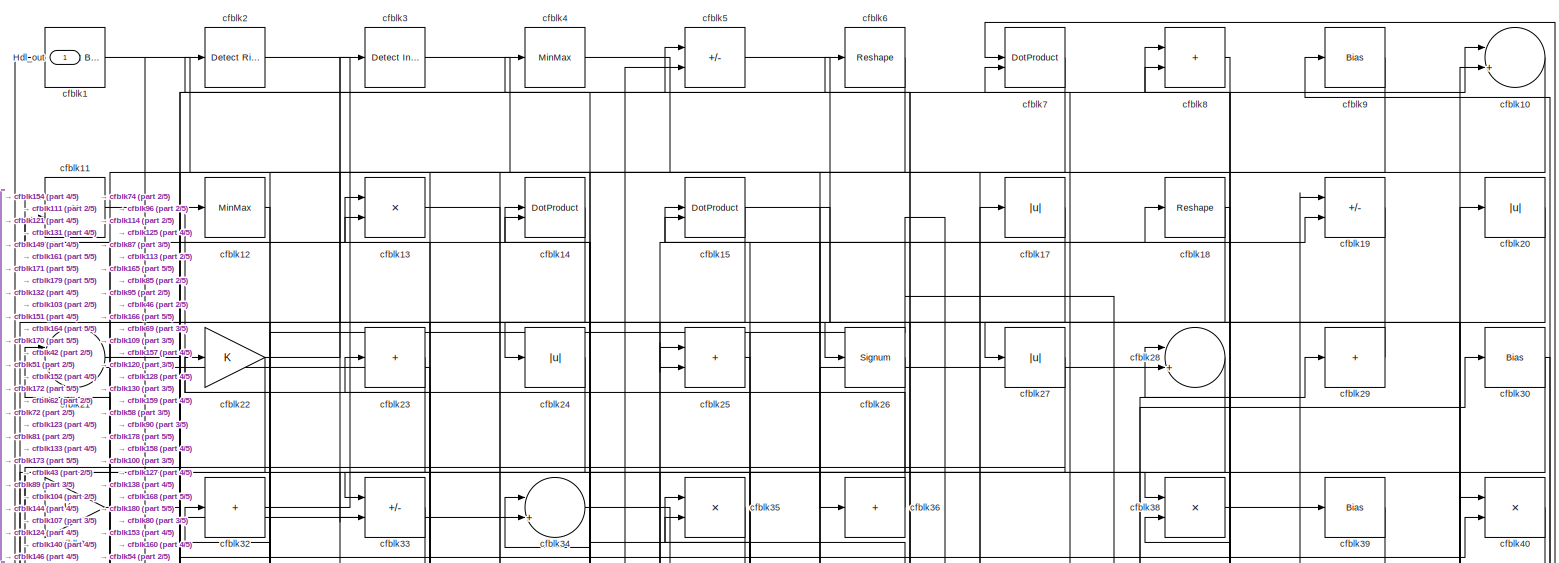
[diagram: root canvas - part 1/5, full width, top band]
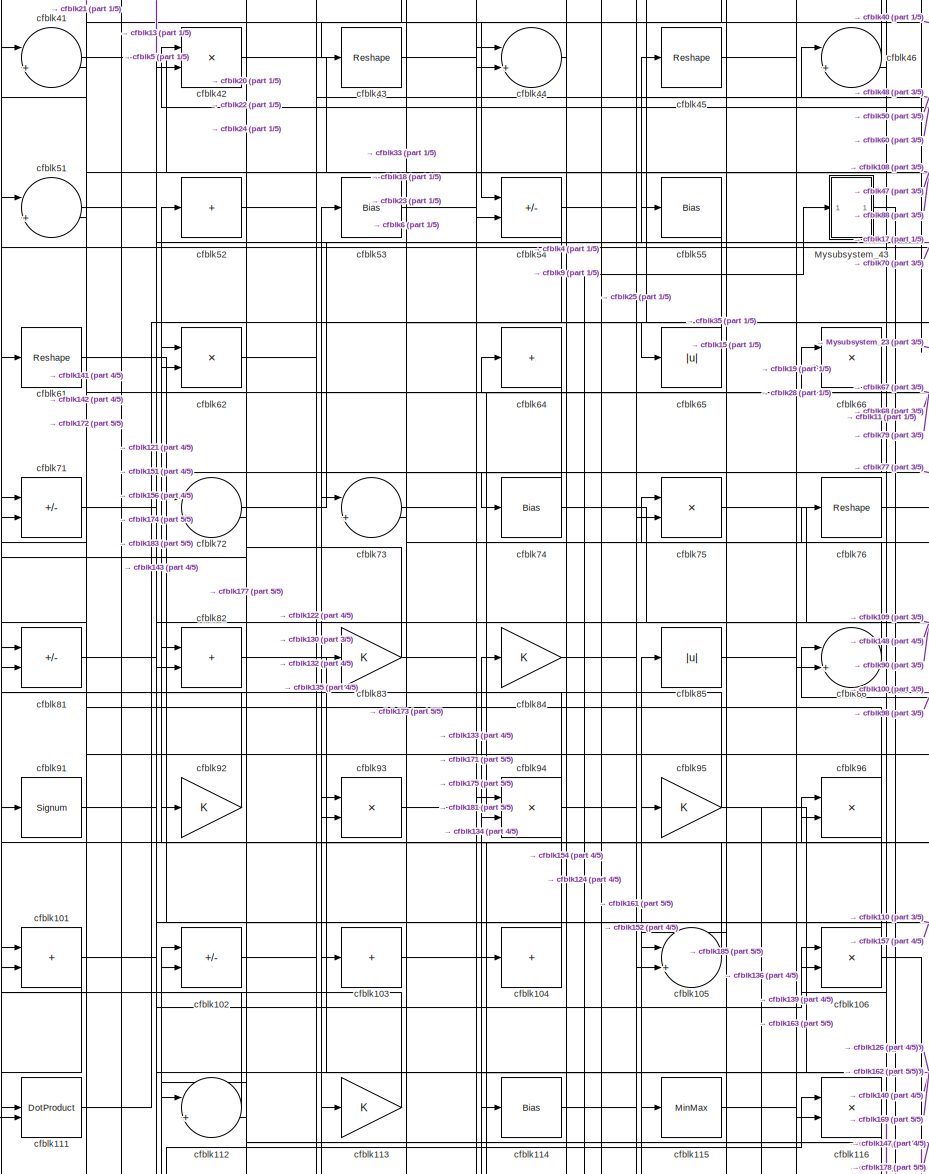
[diagram: root canvas - part 2/5, middle left region]
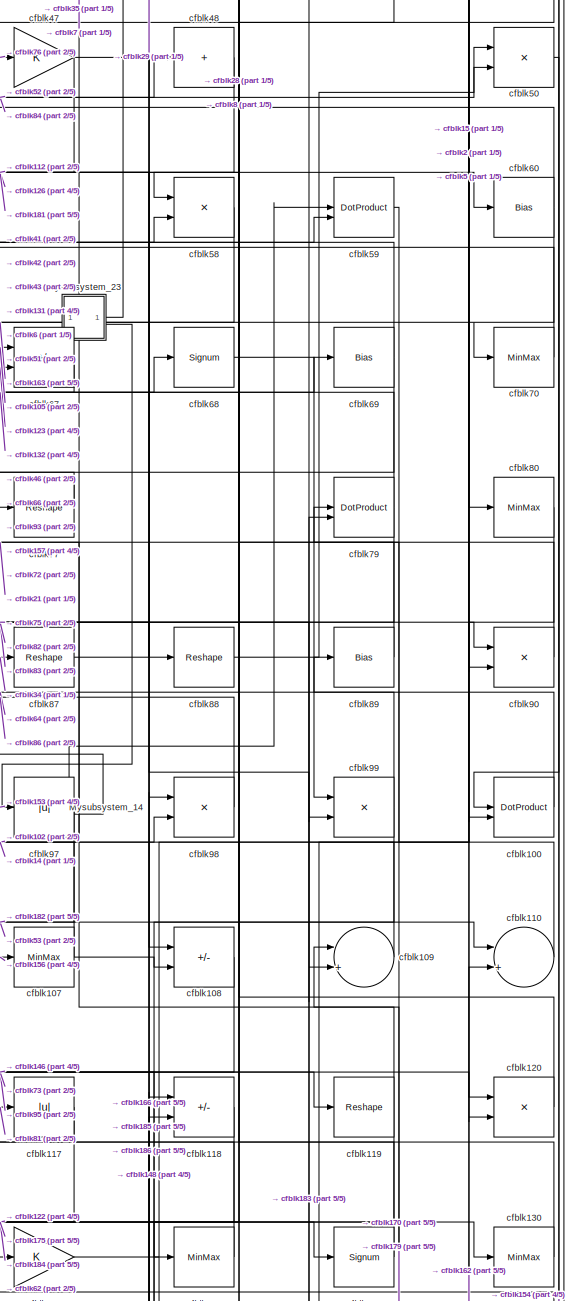
[diagram: root canvas - part 3/5, middle right region]
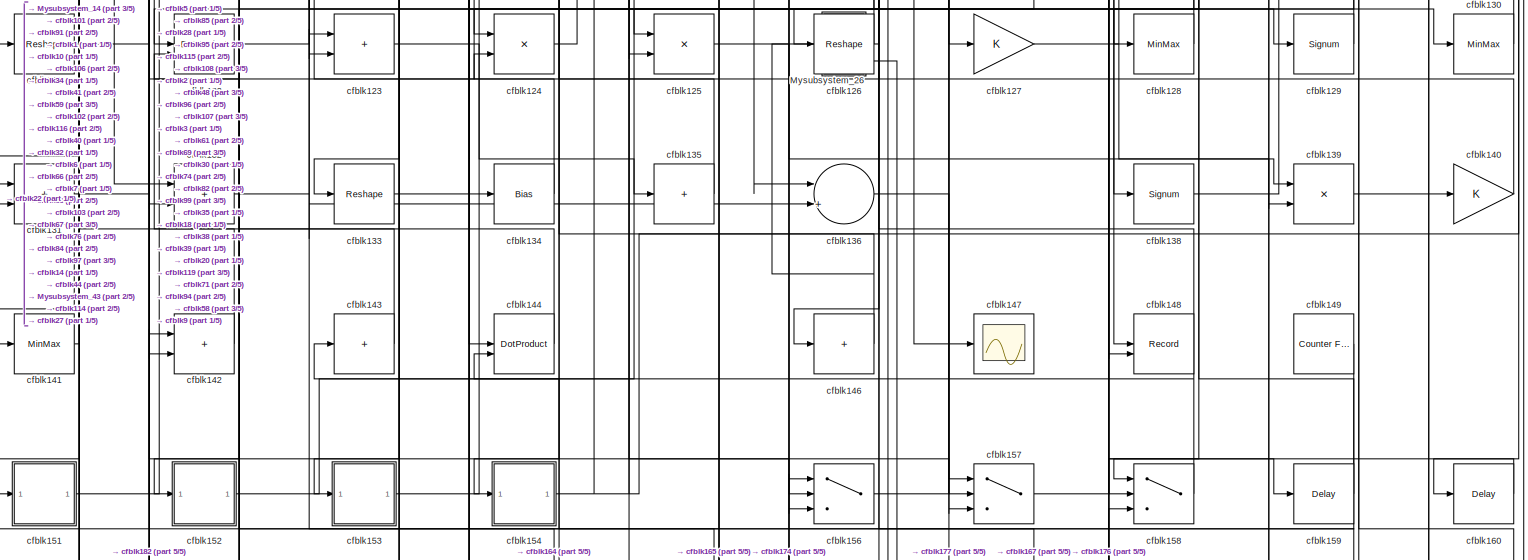
[diagram: root canvas - part 4/5, full width, bottom band]
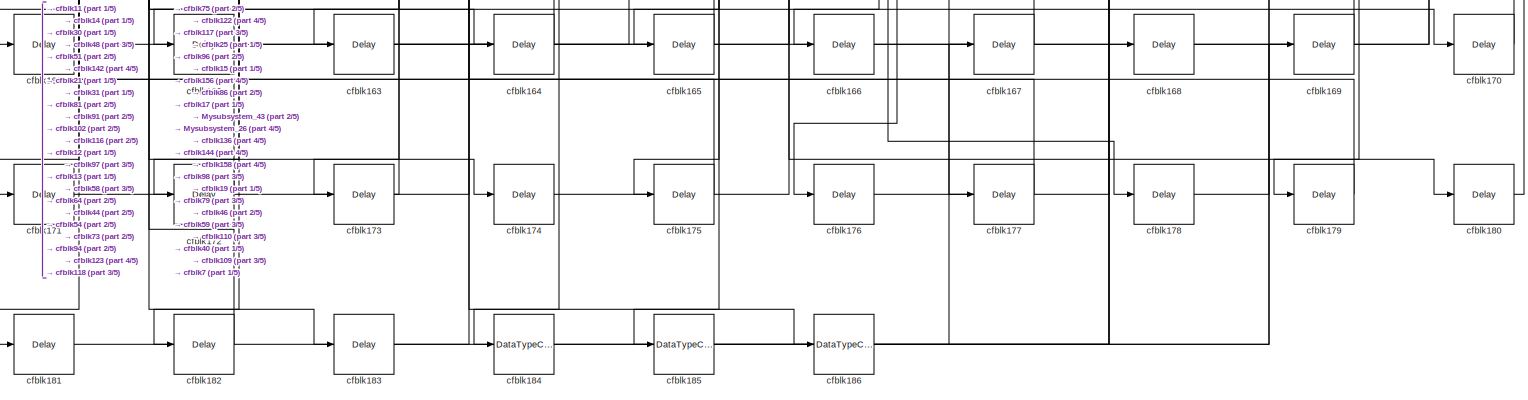
[diagram: root canvas - part 5/5, full width, bottom band]
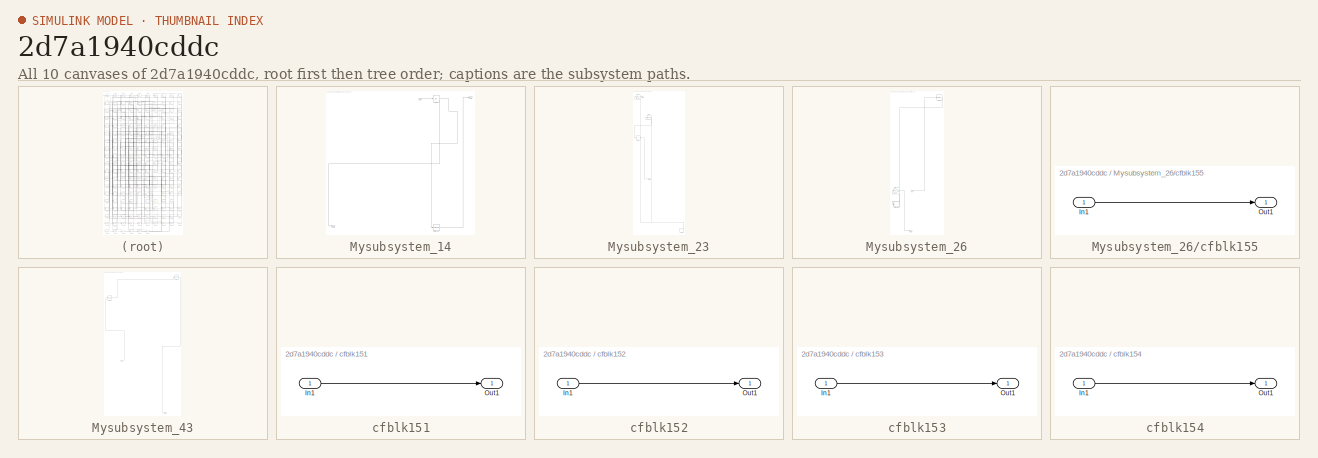
[diagram: thumbnail index - all 10 canvases of the model, root first then tree order]
MODEL slx_2d7a1940cddc
KIND model
CONFIG AbsTol = auto
CONFIG EnableMultiTasking = off
CONFIG FixedStep = auto
CONFIG MaxStep = auto
CONFIG MinStep = auto
CONFIG RelTol = 1e-3
CONFIG SampleTimeConstraint = Unconstrained
CONFIG SolverName = VariableStepAuto
CONFIG StartTime = 0.0
CONFIG StopTime = 10.0
BLOCK [Outport] Hdl_out
  OutDataTypeStr = uint8
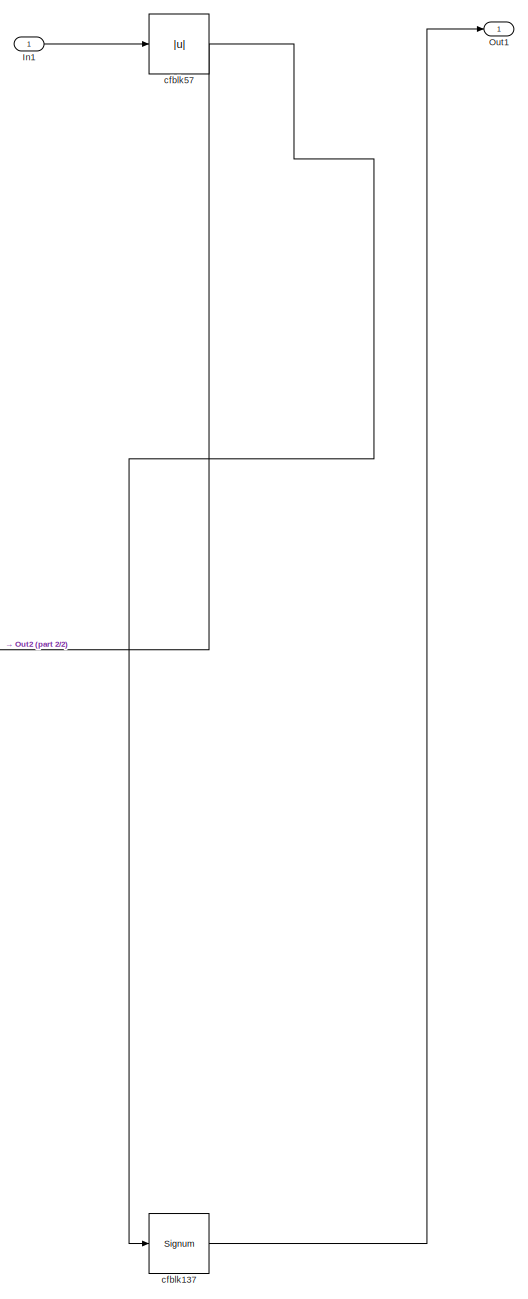
[diagram: Mysubsystem_14 - part 1/2, right side, full height]
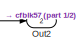
[diagram: Mysubsystem_14 - part 2/2, bottom left region]
BLOCK [SubSystem] Mysubsystem_14
  RTWFcnName = Mysubsystem_14
  RTWFcnNameOpts = User specified
  RTWFileNameOpts = Use function name
  RTWSystemCode = Reusable function
  TreatAsAtomicUnit = on
BLOCK [Inport] Mysubsystem_14/In1
BLOCK [Outport] Mysubsystem_14/Out1
BLOCK [Outport] Mysubsystem_14/Out2
  Port = 2
BLOCK [Signum] Mysubsystem_14/cfblk137
BLOCK [Abs] Mysubsystem_14/cfblk57
  SaturateOnIntegerOverflow = off
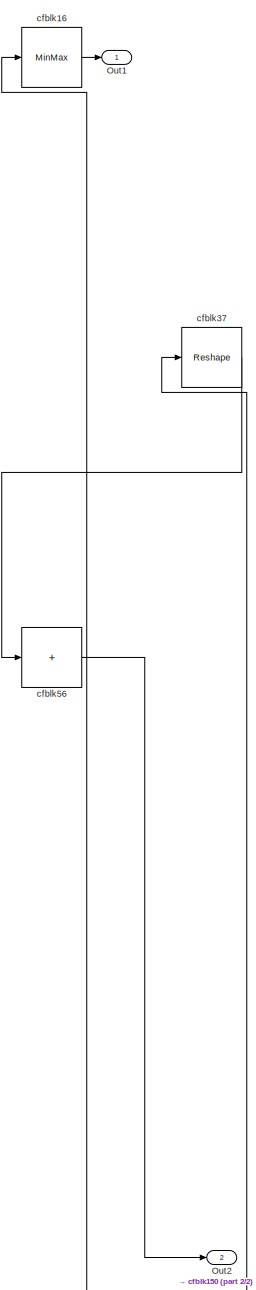
[diagram: Mysubsystem_23 - part 1/2, top left region]
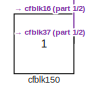
[diagram: Mysubsystem_23 - part 2/2, bottom right region]
BLOCK [SubSystem] Mysubsystem_23
  RTWFcnName = Mysubsystem_23
  RTWFcnNameOpts = User specified
  RTWFileNameOpts = Use function name
  RTWSystemCode = Reusable function
  TreatAsAtomicUnit = on
BLOCK [Outport] Mysubsystem_23/Out1
BLOCK [Outport] Mysubsystem_23/Out2
  Port = 2
BLOCK [Constant] Mysubsystem_23/cfblk150
  SampleTime = -1
BLOCK [MinMax] Mysubsystem_23/cfblk16
BLOCK [Reshape] Mysubsystem_23/cfblk37
BLOCK [Sum] Mysubsystem_23/cfblk56
  IconShape = rectangular
  Inputs = +
BLOCK [SubSystem] Mysubsystem_26
  RTWFcnName = Mysubsystem_26
  RTWFcnNameOpts = User specified
  RTWFileNameOpts = Use function name
  RTWSystemCode = Reusable function
  TreatAsAtomicUnit = on
BLOCK [Inport] Mysubsystem_26/In1
BLOCK [Outport] Mysubsystem_26/Out1
BLOCK [Gain] Mysubsystem_26/cfblk145
BLOCK [SubSystem] Mysubsystem_26/cfblk155
  LibrarySourceBlock = hdlsllib/Ports &\nSubsystems/Subsystem
BLOCK [Inport] Mysubsystem_26/cfblk155/In1
BLOCK [Outport] Mysubsystem_26/cfblk155/Out1
BLOCK [MinMax] Mysubsystem_26/cfblk78
BLOCK [SubSystem] Mysubsystem_43
  RTWFcnName = Mysubsystem_43
  RTWFcnNameOpts = User specified
  RTWFileNameOpts = Use function name
  RTWSystemCode = Reusable function
  TreatAsAtomicUnit = on
BLOCK [Inport] Mysubsystem_43/In1
BLOCK [Outport] Mysubsystem_43/Out1
BLOCK [Signum] Mysubsystem_43/cfblk49
BLOCK [Reshape] Mysubsystem_43/cfblk63
BLOCK [Reference] cfblk1  REF=simulink/Logic and Bit
Operations/Extract Bits
  LibrarySourceBlock = hdlsllib/Logic and Bit\nOperations/Extract Bits
  SourceBlock = simulink/Logic and Bit\nOperations/Extract Bits
  SourceType = Extract Bits
BLOCK [Sum] cfblk10
  Inputs = |++
  OutDataTypeStr = uint8
BLOCK [DotProduct] cfblk100
  OutDataTypeStr = uint8
BLOCK [Sum] cfblk101
  IconShape = rectangular
  OutDataTypeStr = uint8
BLOCK [Sum] cfblk102
  IconShape = rectangular
  Inputs = +-
  OutDataTypeStr = uint8
BLOCK [Sum] cfblk103
  IconShape = rectangular
  Inputs = +
  OutDataTypeStr = uint8
BLOCK [Sum] cfblk104
  IconShape = rectangular
  Inputs = +
  OutDataTypeStr = uint8
BLOCK [Sum] cfblk105
  Inputs = |++
  OutDataTypeStr = uint8
BLOCK [Product] cfblk106
  Inputs = */
  OutDataTypeStr = uint8
  RndMeth = Zero
  SaturateOnIntegerOverflow = on
BLOCK [MinMax] cfblk107
  OutDataTypeStr = uint8
BLOCK [Sum] cfblk108
  IconShape = rectangular
  Inputs = +-
  OutDataTypeStr = uint8
BLOCK [Sum] cfblk109
  Inputs = |++
  OutDataTypeStr = uint8
BLOCK [Product] cfblk11
  Inputs = */
  OutDataTypeStr = uint8
  RndMeth = Zero
  SaturateOnIntegerOverflow = on
BLOCK [Sum] cfblk110
  Inputs = |++
  OutDataTypeStr = uint8
BLOCK [DotProduct] cfblk111
  OutDataTypeStr = uint8
BLOCK [Sum] cfblk112
  Inputs = |++
  OutDataTypeStr = uint8
BLOCK [Gain] cfblk113
  OutDataTypeStr = uint8
BLOCK [Bias] cfblk114
  Bias = 0.0
  SaturateOnIntegerOverflow = off
BLOCK [MinMax] cfblk115
  OutDataTypeStr = uint8
BLOCK [Product] cfblk116
  Inputs = */
  OutDataTypeStr = uint8
  RndMeth = Zero
  SaturateOnIntegerOverflow = on
BLOCK [Abs] cfblk117
  OutDataTypeStr = uint8
  SaturateOnIntegerOverflow = off
BLOCK [Sum] cfblk118
  IconShape = rectangular
  Inputs = +-
  OutDataTypeStr = uint8
BLOCK [Reshape] cfblk119
BLOCK [MinMax] cfblk12
  OutDataTypeStr = uint8
BLOCK [Product] cfblk120
  Inputs = */
  OutDataTypeStr = uint8
  RndMeth = Zero
  SaturateOnIntegerOverflow = on
BLOCK [Reshape] cfblk121
BLOCK [DotProduct] cfblk122
  OutDataTypeStr = uint8
BLOCK [Sum] cfblk123
  IconShape = rectangular
  OutDataTypeStr = uint8
BLOCK [Product] cfblk124
  Inputs = */
  OutDataTypeStr = uint8
  RndMeth = Zero
  SaturateOnIntegerOverflow = on
BLOCK [Product] cfblk125
  Inputs = */
  OutDataTypeStr = uint8
  RndMeth = Zero
  SaturateOnIntegerOverflow = on
BLOCK [Reshape] cfblk126
BLOCK [Gain] cfblk127
  OutDataTypeStr = uint8
BLOCK [MinMax] cfblk128
  OutDataTypeStr = uint8
BLOCK [Signum] cfblk129
BLOCK [Product] cfblk13
  Inputs = */
  OutDataTypeStr = uint8
  RndMeth = Zero
  SaturateOnIntegerOverflow = on
BLOCK [MinMax] cfblk130
  OutDataTypeStr = uint8
BLOCK [Sum] cfblk131
  IconShape = rectangular
  OutDataTypeStr = uint8
BLOCK [Sum] cfblk132
  IconShape = rectangular
  OutDataTypeStr = uint8
BLOCK [Reshape] cfblk133
BLOCK [Bias] cfblk134
  Bias = 0.0
  SaturateOnIntegerOverflow = off
BLOCK [Sum] cfblk135
  IconShape = rectangular
  Inputs = +
  OutDataTypeStr = uint8
BLOCK [Sum] cfblk136
  Inputs = |++
  OutDataTypeStr = uint8
BLOCK [Signum] cfblk138
BLOCK [Product] cfblk139
  Inputs = */
  OutDataTypeStr = uint8
  RndMeth = Zero
  SaturateOnIntegerOverflow = on
BLOCK [DotProduct] cfblk14
  OutDataTypeStr = uint8
BLOCK [Gain] cfblk140
  OutDataTypeStr = uint8
BLOCK [MinMax] cfblk141
  OutDataTypeStr = uint8
BLOCK [Sum] cfblk142
  IconShape = rectangular
  OutDataTypeStr = uint8
BLOCK [Sum] cfblk143
  IconShape = rectangular
  Inputs = +
  OutDataTypeStr = uint8
BLOCK [DotProduct] cfblk144
  OutDataTypeStr = uint8
BLOCK [Sum] cfblk146
  IconShape = rectangular
  Inputs = +
  OutDataTypeStr = uint8
BLOCK [Scope] cfblk147
  Floating = off
  NumInputPorts = 1
  ScopeSpecificationString = Simulink.scopes.TimeScopeBlockCfg('CurrentConfiguration', extmgr.ConfigurationSet(extmgr.Configuration('Core','General UI',true),extmgr.Configuration('Core','Source UI',true),extmgr.Configuration('Sources','WiredSimulink',true,'DataLoggingVariableName','ScopeData2','DataLoggingSaveFormat','Array','DataLoggingLimitDataPoints',true,'DataLoggingDecimation','1'),extmgr.Configuration('Visuals','Time Do...<+868ch>
BLOCK [Record] cfblk148
  CompatibilityTag = XY
  FileSettingsInternal = {"entries":[{"content":{"excelSettings":{"content":{},"type":"Streamout.ExcelSettings"}},"type":"Streamout.FileSettingStorage","uuid":""}],"packageUris":["http:\/\/schema.mathworks.com\/mf0\/streamout_blocks\/R2020a"],"version":"1.0"}
  Layout = [1 1]
  SignalsInternal = {"entries":[{"content":{"signals":[{"content":{"blockPath":[],"dimensions":[1],"domain":"","lineColor":"#a2142f","plots":[1],"port":1,"signalID":43675,"signalName":"cfblk99"},"type":"RecordBlkView.Signal","uuid":""},{"content":{"blockPath":[],"dimensions":[1],"domain":"","lineColor":"#139fff","plots":[1],"port":2,"signalID":43678,"signalName":"cfblk74"},"type":"RecordBlkView.Signal","uuid":""}]},"...<+142ch>
  VisualizationBindings = {"xyplotplugin":{"info":[{"series":[{"bindingParametersList":[{"parameter":"X-Axis","signalID":43675,"signalName":"cfblk99"},{"parameter":"Y-Axis","signalID":43678,"signalName":"cfblk74"}],"seriesID":56360}],"subplotID":1}]}}
  st = -1
BLOCK [Reference] cfblk149  REF=hdlsllib/Sources/Counter
Free-Running
  SourceBlock = hdlsllib/Sources/Counter\nFree-Running
  SourceType = Counter Free-Running
BLOCK [DotProduct] cfblk15
  OutDataTypeStr = uint8
BLOCK [SubSystem] cfblk151
  LibrarySourceBlock = hdlsllib/Ports &\nSubsystems/Subsystem
BLOCK [Inport] cfblk151/In1
BLOCK [Outport] cfblk151/Out1
BLOCK [SubSystem] cfblk152
  LibrarySourceBlock = hdlsllib/Ports &\nSubsystems/Subsystem
BLOCK [Inport] cfblk152/In1
BLOCK [Outport] cfblk152/Out1
BLOCK [SubSystem] cfblk153
  LibrarySourceBlock = hdlsllib/Ports &\nSubsystems/Subsystem
BLOCK [Inport] cfblk153/In1
BLOCK [Outport] cfblk153/Out1
BLOCK [SubSystem] cfblk154
  LibrarySourceBlock = hdlsllib/Ports &\nSubsystems/Subsystem
BLOCK [Inport] cfblk154/In1
BLOCK [Outport] cfblk154/Out1
BLOCK [Switch] cfblk156
  InputSameDT = off
  OutDataTypeStr = uint8
  SaturateOnIntegerOverflow = off
BLOCK [Switch] cfblk157
  InputSameDT = off
  OutDataTypeStr = uint8
  SaturateOnIntegerOverflow = off
BLOCK [Switch] cfblk158
  InputSameDT = off
  OutDataTypeStr = uint8
  SaturateOnIntegerOverflow = off
BLOCK [Delay] cfblk159
  InputPortMap = u0
  SampleTime = 1
BLOCK [Delay] cfblk160
  InputPortMap = u0
  SampleTime = 1
BLOCK [Delay] cfblk161
  InputPortMap = u0
  SampleTime = 1
BLOCK [Delay] cfblk162
  InputPortMap = u0
  SampleTime = 1
BLOCK [Delay] cfblk163
  InputPortMap = u0
  SampleTime = 1
BLOCK [Delay] cfblk164
  InputPortMap = u0
  SampleTime = 1
BLOCK [Delay] cfblk165
  InputPortMap = u0
  SampleTime = 1
BLOCK [Delay] cfblk166
  InputPortMap = u0
  SampleTime = 1
BLOCK [Delay] cfblk167
  InputPortMap = u0
  SampleTime = 1
BLOCK [Delay] cfblk168
  InputPortMap = u0
  SampleTime = 1
BLOCK [Delay] cfblk169
  InputPortMap = u0
  SampleTime = 1
BLOCK [Abs] cfblk17
  OutDataTypeStr = uint8
  SaturateOnIntegerOverflow = off
BLOCK [Delay] cfblk170
  InputPortMap = u0
  SampleTime = 1
BLOCK [Delay] cfblk171
  InputPortMap = u0
  SampleTime = 1
BLOCK [Delay] cfblk172
  InputPortMap = u0
  SampleTime = 1
BLOCK [Delay] cfblk173
  InputPortMap = u0
  SampleTime = 1
BLOCK [Delay] cfblk174
  InputPortMap = u0
  SampleTime = 1
BLOCK [Delay] cfblk175
  InputPortMap = u0
  SampleTime = 1
BLOCK [Delay] cfblk176
  InputPortMap = u0
  SampleTime = 1
BLOCK [Delay] cfblk177
  InputPortMap = u0
  SampleTime = 1
BLOCK [Delay] cfblk178
  InputPortMap = u0
  SampleTime = 1
BLOCK [Delay] cfblk179
  InputPortMap = u0
  SampleTime = 1
BLOCK [Reshape] cfblk18
BLOCK [Delay] cfblk180
  InputPortMap = u0
  SampleTime = 1
BLOCK [Delay] cfblk181
  InputPortMap = u0
  SampleTime = 1
BLOCK [Delay] cfblk182
  InputPortMap = u0
  SampleTime = 1
BLOCK [Delay] cfblk183
  InputPortMap = u0
  SampleTime = 1
BLOCK [DataTypeConversion] cfblk184
  OutDataTypeStr = uint8
  RndMeth = Floor
  SaturateOnIntegerOverflow = off
BLOCK [DataTypeConversion] cfblk185
  OutDataTypeStr = uint8
  RndMeth = Floor
  SaturateOnIntegerOverflow = off
BLOCK [DataTypeConversion] cfblk186
  OutDataTypeStr = uint8
  RndMeth = Floor
  SaturateOnIntegerOverflow = off
BLOCK [Sum] cfblk19
  IconShape = rectangular
  Inputs = +-
  OutDataTypeStr = uint8
BLOCK [Reference] cfblk2  REF=hdlsllib/Logic and Bit
Operations/Detect Rise
Nonnegative
  SourceBlock = hdlsllib/Logic and Bit\nOperations/Detect Rise\nNonnegative
  SourceType = Detect Rise Nonnegative
BLOCK [Abs] cfblk20
  OutDataTypeStr = uint8
  SaturateOnIntegerOverflow = off
BLOCK [Sum] cfblk21
  Inputs = |++
  OutDataTypeStr = uint8
BLOCK [Gain] cfblk22
  OutDataTypeStr = uint8
BLOCK [Sum] cfblk23
  IconShape = rectangular
  Inputs = +
  OutDataTypeStr = uint8
BLOCK [Abs] cfblk24
  OutDataTypeStr = uint8
  SaturateOnIntegerOverflow = off
BLOCK [Sum] cfblk25
  IconShape = rectangular
  OutDataTypeStr = uint8
BLOCK [Signum] cfblk26
BLOCK [Abs] cfblk27
  OutDataTypeStr = uint8
  SaturateOnIntegerOverflow = off
BLOCK [Sum] cfblk28
  Inputs = |++
  OutDataTypeStr = uint8
BLOCK [Sum] cfblk29
  IconShape = rectangular
  Inputs = +
  OutDataTypeStr = uint8
BLOCK [Reference] cfblk3  REF=simulink/Logic and Bit
Operations/Detect
Increase
  LibrarySourceBlock = hdlsllib/Logic and Bit\nOperations/Detect\nIncrease
  SourceBlock = simulink/Logic and Bit\nOperations/Detect\nIncrease
  SourceType = Detect Increase
BLOCK [Bias] cfblk30
  Bias = 0.0
  SaturateOnIntegerOverflow = off
BLOCK [Gain] cfblk31
  OutDataTypeStr = uint8
BLOCK [Sum] cfblk32
  IconShape = rectangular
  Inputs = +
  OutDataTypeStr = uint8
BLOCK [Sum] cfblk33
  IconShape = rectangular
  Inputs = +-
  OutDataTypeStr = uint8
BLOCK [Sum] cfblk34
  Inputs = |++
  OutDataTypeStr = uint8
BLOCK [Product] cfblk35
  Inputs = */
  OutDataTypeStr = uint8
  RndMeth = Zero
  SaturateOnIntegerOverflow = on
BLOCK [Sum] cfblk36
  IconShape = rectangular
  Inputs = +
  OutDataTypeStr = uint8
BLOCK [Product] cfblk38
  Inputs = */
  OutDataTypeStr = uint8
  RndMeth = Zero
  SaturateOnIntegerOverflow = on
BLOCK [Bias] cfblk39
  Bias = 0.0
  SaturateOnIntegerOverflow = off
BLOCK [MinMax] cfblk4
  OutDataTypeStr = uint8
BLOCK [Product] cfblk40
  Inputs = */
  OutDataTypeStr = uint8
  RndMeth = Zero
  SaturateOnIntegerOverflow = on
BLOCK [Sum] cfblk41
  Inputs = |++
  OutDataTypeStr = uint8
BLOCK [Product] cfblk42
  Inputs = */
  OutDataTypeStr = uint8
  RndMeth = Zero
  SaturateOnIntegerOverflow = on
BLOCK [Reshape] cfblk43
BLOCK [Sum] cfblk44
  Inputs = |++
  OutDataTypeStr = uint8
BLOCK [Reshape] cfblk45
BLOCK [Sum] cfblk46
  Inputs = |++
  OutDataTypeStr = uint8
BLOCK [Gain] cfblk47
  OutDataTypeStr = uint8
BLOCK [Sum] cfblk48
  IconShape = rectangular
  Inputs = +
  OutDataTypeStr = uint8
BLOCK [Sum] cfblk5
  IconShape = rectangular
  Inputs = +-
  OutDataTypeStr = uint8
BLOCK [Product] cfblk50
  Inputs = */
  OutDataTypeStr = uint8
  RndMeth = Zero
  SaturateOnIntegerOverflow = on
BLOCK [Sum] cfblk51
  Inputs = |++
  OutDataTypeStr = uint8
BLOCK [Sum] cfblk52
  IconShape = rectangular
  Inputs = +
  OutDataTypeStr = uint8
BLOCK [Bias] cfblk53
  Bias = 0.0
  SaturateOnIntegerOverflow = off
BLOCK [Sum] cfblk54
  IconShape = rectangular
  Inputs = +-
  OutDataTypeStr = uint8
BLOCK [Bias] cfblk55
  Bias = 0.0
  SaturateOnIntegerOverflow = off
BLOCK [Product] cfblk58
  Inputs = */
  OutDataTypeStr = uint8
  RndMeth = Zero
  SaturateOnIntegerOverflow = on
BLOCK [DotProduct] cfblk59
  OutDataTypeStr = uint8
BLOCK [Reshape] cfblk6
BLOCK [Bias] cfblk60
  Bias = 0.0
  SaturateOnIntegerOverflow = off
BLOCK [Reshape] cfblk61
BLOCK [Product] cfblk62
  Inputs = */
  OutDataTypeStr = uint8
  RndMeth = Zero
  SaturateOnIntegerOverflow = on
BLOCK [Sum] cfblk64
  IconShape = rectangular
  Inputs = +
  OutDataTypeStr = uint8
BLOCK [Abs] cfblk65
  OutDataTypeStr = uint8
  SaturateOnIntegerOverflow = off
BLOCK [Product] cfblk66
  Inputs = */
  OutDataTypeStr = uint8
  RndMeth = Zero
  SaturateOnIntegerOverflow = on
BLOCK [Sum] cfblk67
  IconShape = rectangular
  Inputs = +-
  OutDataTypeStr = uint8
BLOCK [Signum] cfblk68
BLOCK [Bias] cfblk69
  Bias = 0.0
  SaturateOnIntegerOverflow = off
BLOCK [DotProduct] cfblk7
  OutDataTypeStr = uint8
BLOCK [MinMax] cfblk70
  OutDataTypeStr = uint8
BLOCK [Sum] cfblk71
  IconShape = rectangular
  Inputs = +-
  OutDataTypeStr = uint8
BLOCK [Sum] cfblk72
  Inputs = |++
  OutDataTypeStr = uint8
BLOCK [Sum] cfblk73
  Inputs = |++
  OutDataTypeStr = uint8
BLOCK [Bias] cfblk74
  Bias = 0.0
  SaturateOnIntegerOverflow = off
BLOCK [Product] cfblk75
  Inputs = */
  OutDataTypeStr = uint8
  RndMeth = Zero
  SaturateOnIntegerOverflow = on
BLOCK [Reshape] cfblk76
BLOCK [Reshape] cfblk77
BLOCK [DotProduct] cfblk79
  OutDataTypeStr = uint8
BLOCK [Sum] cfblk8
  IconShape = rectangular
  OutDataTypeStr = uint8
BLOCK [MinMax] cfblk80
  OutDataTypeStr = uint8
BLOCK [Sum] cfblk81
  IconShape = rectangular
  Inputs = +-
  OutDataTypeStr = uint8
BLOCK [Sum] cfblk82
  IconShape = rectangular
  OutDataTypeStr = uint8
BLOCK [Gain] cfblk83
  OutDataTypeStr = uint8
BLOCK [Gain] cfblk84
  OutDataTypeStr = uint8
BLOCK [Abs] cfblk85
  OutDataTypeStr = uint8
  SaturateOnIntegerOverflow = off
BLOCK [Sum] cfblk86
  Inputs = |++
  OutDataTypeStr = uint8
BLOCK [Reshape] cfblk87
BLOCK [Reshape] cfblk88
BLOCK [Bias] cfblk89
  Bias = 0.0
  SaturateOnIntegerOverflow = off
BLOCK [Bias] cfblk9
  Bias = 0.0
  SaturateOnIntegerOverflow = off
BLOCK [Product] cfblk90
  Inputs = */
  OutDataTypeStr = uint8
  RndMeth = Zero
  SaturateOnIntegerOverflow = on
BLOCK [Signum] cfblk91
BLOCK [Gain] cfblk92
  OutDataTypeStr = uint8
BLOCK [Product] cfblk93
  Inputs = */
  OutDataTypeStr = uint8
  RndMeth = Zero
  SaturateOnIntegerOverflow = on
BLOCK [Product] cfblk94
  Inputs = */
  OutDataTypeStr = uint8
  RndMeth = Zero
  SaturateOnIntegerOverflow = on
BLOCK [Gain] cfblk95
  OutDataTypeStr = uint8
BLOCK [Product] cfblk96
  Inputs = */
  OutDataTypeStr = uint8
  RndMeth = Zero
  SaturateOnIntegerOverflow = on
BLOCK [Abs] cfblk97
  OutDataTypeStr = uint8
  SaturateOnIntegerOverflow = off
BLOCK [Product] cfblk98
  Inputs = */
  OutDataTypeStr = uint8
  RndMeth = Zero
  SaturateOnIntegerOverflow = on
BLOCK [Product] cfblk99
  Inputs = */
  OutDataTypeStr = uint8
  RndMeth = Zero
  SaturateOnIntegerOverflow = on
LINE Mysubsystem_14/In1:1 -> Mysubsystem_14/cfblk57:1
LINE Mysubsystem_14/cfblk137:1 -> Mysubsystem_14/Out1:1
NET Mysubsystem_14/cfblk57:1 -> Mysubsystem_14/Out2:1, Mysubsystem_14/cfblk137:1
LINE Mysubsystem_14:1 -> cfblk59:1
LINE Mysubsystem_14:2 -> cfblk131:1
NET Mysubsystem_23/cfblk150:1 -> Mysubsystem_23/cfblk16:1, Mysubsystem_23/cfblk37:1
LINE Mysubsystem_23/cfblk16:1 -> Mysubsystem_23/Out1:1
LINE Mysubsystem_23/cfblk37:1 -> Mysubsystem_23/cfblk56:1
LINE Mysubsystem_23/cfblk56:1 -> Mysubsystem_23/Out2:1
NET Mysubsystem_23:1 -> cfblk105:1, cfblk112:1, cfblk67:1
LINE Mysubsystem_23:2 -> Mysubsystem_14:1
LINE Mysubsystem_26/In1:1 -> Mysubsystem_26/cfblk78:1
LINE Mysubsystem_26/cfblk145:1 -> Mysubsystem_26/Out1:1
LINE Mysubsystem_26/cfblk155/In1:1 -> Mysubsystem_26/cfblk155/Out1:1
LINE Mysubsystem_26/cfblk155:1 -> Mysubsystem_26/cfblk145:1
LINE Mysubsystem_26/cfblk78:1 -> Mysubsystem_26/cfblk155:1
LINE Mysubsystem_26:1 -> cfblk176:1
LINE Mysubsystem_43/In1:1 -> Mysubsystem_43/cfblk63:1
LINE Mysubsystem_43/cfblk49:1 -> Mysubsystem_43/Out1:1
LINE Mysubsystem_43/cfblk63:1 -> Mysubsystem_43/cfblk49:1
LINE Mysubsystem_43:1 -> cfblk178:1
LINE cfblk100:1 -> cfblk64:1
NET cfblk101:1 -> cfblk111:1, cfblk93:2, cfblk95:1
LINE cfblk102:1 -> cfblk98:2
LINE cfblk103:1 -> cfblk129:1
LINE cfblk104:1 -> cfblk22:1
LINE cfblk105:1 -> cfblk52:1
NET cfblk106:1 -> cfblk147:1, cfblk81:2
NET cfblk107:1 -> cfblk108:2, cfblk14:2
LINE cfblk108:1 -> cfblk146:1
NET cfblk109:1 -> cfblk35:2, cfblk7:2
LINE cfblk10:1 -> cfblk31:1
LINE cfblk110:1 -> cfblk79:1
LINE cfblk111:1 -> cfblk65:1
LINE cfblk112:1 -> cfblk101:1
LINE cfblk113:1 -> cfblk92:1
NET cfblk114:1 -> cfblk157:3, cfblk25:1
LINE cfblk115:1 -> cfblk139:1
LINE cfblk116:1 -> cfblk162:1
LINE cfblk117:1 -> cfblk175:1
LINE cfblk118:1 -> cfblk184:1
NET cfblk119:1 -> cfblk122:1, cfblk77:1
LINE cfblk11:1 -> cfblk103:1
LINE cfblk120:1 -> cfblk28:1
NET cfblk121:1 -> cfblk106:1, cfblk10:1, cfblk34:2
LINE cfblk122:1 -> cfblk66:1
NET cfblk123:1 -> cfblk135:1, cfblk67:2
LINE cfblk124:1 -> Mysubsystem_43:1
LINE cfblk125:1 -> cfblk156:2
NET cfblk126:1 -> cfblk106:2, cfblk82:1
NET cfblk127:1 -> cfblk10:2, cfblk139:2
LINE cfblk128:1 -> cfblk35:1
NET cfblk129:1 -> cfblk71:2, cfblk94:2
LINE cfblk12:1 -> cfblk172:1
LINE cfblk130:1 -> cfblk8:2
NET cfblk131:1 -> cfblk141:1, cfblk59:2
NET cfblk132:1 -> cfblk136:2, cfblk69:1, cfblk96:2
NET cfblk133:1 -> cfblk134:1, cfblk76:1
LINE cfblk134:1 -> cfblk84:1
LINE cfblk135:1 -> cfblk53:1
LINE cfblk136:1 -> cfblk177:1
LINE cfblk138:1 -> cfblk20:1
LINE cfblk139:1 -> cfblk140:1
LINE cfblk13:1 -> cfblk104:1
NET cfblk140:1 -> cfblk14:1, cfblk96:1
LINE cfblk141:1 -> cfblk101:2
LINE cfblk142:1 -> cfblk91:1
LINE cfblk143:1 -> cfblk102:1
LINE cfblk144:1 -> cfblk32:1
NET cfblk146:1 -> Mysubsystem_26:1, cfblk34:1
LINE cfblk149:1 -> cfblk1:1
LINE cfblk14:1 -> cfblk171:1
LINE cfblk151/In1:1 -> cfblk151/Out1:1
NET cfblk151:1 -> cfblk116:1, cfblk124:2, cfblk40:2
LINE cfblk152/In1:1 -> cfblk152/Out1:1
LINE cfblk152:1 -> cfblk85:1
LINE cfblk153/In1:1 -> cfblk153/Out1:1
LINE cfblk153:1 -> cfblk97:1
LINE cfblk154/In1:1 -> cfblk154/Out1:1
NET cfblk154:1 -> cfblk58:2, cfblk5:2, cfblk9:1
LINE cfblk156:1 -> cfblk107:1
NET cfblk157:1 -> cfblk159:1, cfblk30:1
NET cfblk158:1 -> cfblk143:1, cfblk2:1
LINE cfblk159:1 -> cfblk38:2
NET cfblk15:1 -> cfblk120:1, cfblk180:1, cfblk42:2
LINE cfblk160:1 -> cfblk158:2
LINE cfblk161:1 -> cfblk75:2
LINE cfblk162:1 -> cfblk110:2
LINE cfblk163:1 -> cfblk86:2
LINE cfblk164:1 -> cfblk123:1
LINE cfblk165:1 -> cfblk122:2
LINE cfblk166:1 -> cfblk98:1
LINE cfblk167:1 -> cfblk144:2
LINE cfblk168:1 -> cfblk40:1
LINE cfblk169:1 -> cfblk46:2
LINE cfblk170:1 -> cfblk109:1
LINE cfblk171:1 -> cfblk44:1
LINE cfblk172:1 -> cfblk51:2
LINE cfblk173:1 -> cfblk13:2
LINE cfblk174:1 -> cfblk156:1
LINE cfblk175:1 -> cfblk94:1
LINE cfblk176:1 -> cfblk158:3
LINE cfblk177:1 -> cfblk102:2
LINE cfblk178:1 -> cfblk19:1
LINE cfblk179:1 -> cfblk11:2
LINE cfblk17:1 -> cfblk166:1
LINE cfblk180:1 -> cfblk7:1
LINE cfblk181:1 -> cfblk54:2
LINE cfblk182:1 -> cfblk142:1
LINE cfblk183:1 -> cfblk79:2
NET cfblk184:1 -> cfblk167:1, cfblk168:1, cfblk169:1
LINE cfblk185:1 -> cfblk118:1
LINE cfblk186:1 -> cfblk118:2
NET cfblk18:1 -> cfblk111:2, cfblk128:1, cfblk133:1, cfblk15:2
LINE cfblk19:1 -> cfblk27:1
NET cfblk1:1 -> cfblk132:1, cfblk144:1
LINE cfblk20:1 -> cfblk62:1
LINE cfblk21:1 -> cfblk164:1
NET cfblk22:1 -> cfblk131:2, cfblk3:1
LINE cfblk23:1 -> cfblk33:1
LINE cfblk24:1 -> cfblk72:2
LINE cfblk25:1 -> cfblk165:1
LINE cfblk26:1 -> cfblk33:2
NET cfblk27:1 -> cfblk121:1, cfblk124:1, cfblk125:2
LINE cfblk28:1 -> cfblk125:1
NET cfblk29:1 -> cfblk24:1, cfblk26:1
NET cfblk2:1 -> cfblk25:2, cfblk80:1
NET cfblk30:1 -> cfblk160:1, cfblk161:1
LINE cfblk31:1 -> cfblk170:1
LINE cfblk32:1 -> cfblk38:1
LINE cfblk33:1 -> cfblk81:1
LINE cfblk34:1 -> cfblk87:1
LINE cfblk35:1 -> cfblk113:1
LINE cfblk36:1 -> cfblk12:1
LINE cfblk38:1 -> cfblk39:1
LINE cfblk39:1 -> cfblk158:1
LINE cfblk3:1 -> cfblk127:1
NET cfblk40:1 -> cfblk153:1, cfblk54:1
NET cfblk41:1 -> cfblk156:3, cfblk88:1
LINE cfblk42:1 -> cfblk108:1
LINE cfblk43:1 -> cfblk60:1
LINE cfblk44:1 -> cfblk154:1
LINE cfblk45:1 -> cfblk116:2
LINE cfblk46:1 -> cfblk11:1
NET cfblk47:1 -> cfblk112:2, cfblk99:2
NET cfblk48:1 -> cfblk126:1, cfblk181:1
LINE cfblk4:1 -> cfblk36:1
LINE cfblk50:1 -> cfblk100:1
NET cfblk51:1 -> cfblk13:1, cfblk5:1
LINE cfblk52:1 -> cfblk50:2
LINE cfblk53:1 -> cfblk110:1
NET cfblk54:1 -> cfblk18:1, cfblk83:1
LINE cfblk55:1 -> cfblk93:1
LINE cfblk58:1 -> cfblk163:1
LINE cfblk59:1 -> cfblk179:1
LINE cfblk5:1 -> cfblk100:2
NET cfblk60:1 -> cfblk42:1, cfblk70:1, cfblk73:2
LINE cfblk61:1 -> cfblk157:1
LINE cfblk62:1 -> cfblk130:1
LINE cfblk64:1 -> cfblk173:1
LINE cfblk65:1 -> cfblk45:1
LINE cfblk66:1 -> cfblk114:1
LINE cfblk67:1 -> cfblk66:2
LINE cfblk68:1 -> cfblk99:1
NET cfblk69:1 -> cfblk157:2, cfblk6:1
NET cfblk6:1 -> cfblk152:1, cfblk43:1
LINE cfblk70:1 -> cfblk51:1
LINE cfblk71:1 -> cfblk55:1
LINE cfblk72:1 -> cfblk17:1
NET cfblk73:1 -> cfblk119:1, cfblk186:1
NET cfblk74:1 -> cfblk148:2, cfblk21:1, cfblk73:1
LINE cfblk75:1 -> cfblk109:2
LINE cfblk76:1 -> cfblk47:1
LINE cfblk77:1 -> cfblk72:1
NET cfblk79:1 -> cfblk46:1, cfblk82:2
LINE cfblk7:1 -> cfblk123:2
LINE cfblk80:1 -> cfblk90:2
NET cfblk81:1 -> cfblk117:1, cfblk174:1
LINE cfblk82:1 -> cfblk138:1
NET cfblk83:1 -> cfblk44:2, cfblk62:2, cfblk90:1
LINE cfblk84:1 -> cfblk48:1
NET cfblk85:1 -> cfblk15:1, cfblk28:2
LINE cfblk86:1 -> cfblk75:1
LINE cfblk87:1 -> cfblk29:1
LINE cfblk88:1 -> cfblk50:1
LINE cfblk89:1 -> cfblk21:2
LINE cfblk8:1 -> cfblk58:1
LINE cfblk90:1 -> cfblk8:1
NET cfblk91:1 -> cfblk151:1, cfblk183:1
LINE cfblk92:1 -> cfblk61:1
NET cfblk93:1 -> cfblk115:1, cfblk68:1
NET cfblk94:1 -> cfblk105:2, cfblk142:2, cfblk41:1, cfblk71:1
NET cfblk95:1 -> cfblk120:2, cfblk136:1, cfblk19:2, cfblk23:1
NET cfblk96:1 -> cfblk185:1, cfblk41:2, cfblk4:1
LINE cfblk97:1 -> cfblk182:1
LINE cfblk98:1 -> cfblk86:1
NET cfblk99:1 -> cfblk148:1, cfblk89:1
NET cfblk9:1 -> cfblk132:2, cfblk74:1
note: NET lines group one-source signal fan-out (src -> all destinations, sorted); 1:1 wires keep LINE
